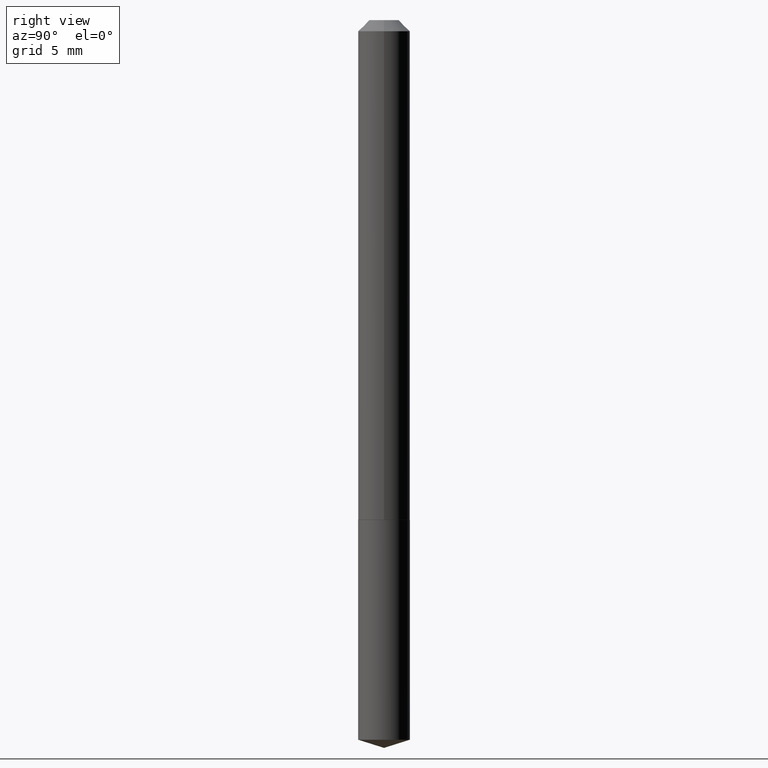
[diagram: clean part render]
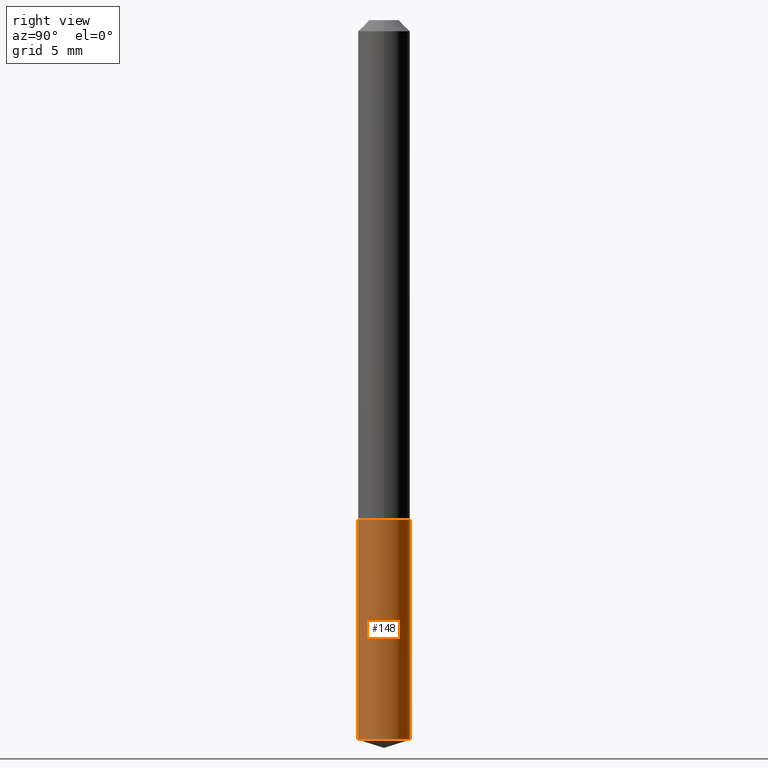
[diagram: same view with one face highlighted and labeled with its STEP entity id]
A machine part, right view. The second image highlights one B-rep face of the part: STEP entity #148.
In plain terms, the highlighted cylindrical surface (edge-blend (fillet) strip) has radius 1.8504 mm, axis along (-0, 0, 1).
Its self-contained STEP definition (entity closure, byte-faithful):
#2 = ORIENTED_EDGE ( 'NONE', *, *, #133, .T. ) ;
#14 = DIRECTION ( 'NONE',  ( -2.445479730124527692E-29, 3.491465695140185611E-15, 1.000000000000000000 ) ) ;
#26 = CIRCLE ( 'NONE', #376, 0.07284999999999999809 ) ;
#46 = CARTESIAN_POINT ( 'NONE',  ( 4.950199262242735312E-29, -7.067553278479676928E-15, -2.024230483230166300 ) ) ;
#50 = FACE_OUTER_BOUND ( 'NONE', #356, .T. ) ;
#52 = DIRECTION ( 'NONE',  ( -6.982962677686265922E-15, -1.000000000000000000, 3.749962928845934523E-15 ) ) ;
#54 = CARTESIAN_POINT ( 'NONE',  ( 5.176303830012824729E-16, 0.07284999999999293430, -2.024230483230166744 ) ) ;
#55 = VECTOR ( 'NONE', #329, 39.37007874015748143 ) ;
#77 = DIRECTION ( 'NONE',  ( -2.445479730124527692E-29, 3.491465695140185611E-15, 1.000000000000000000 ) ) ;
#78 = CARTESIAN_POINT ( 'NONE',  ( 3.437106407093210258E-29, -4.907277021744042169E-15, -1.405500000000000416 ) ) ;
#80 = EDGE_CURVE ( 'NONE', #189, #157, #390, .T. ) ;
#87 = VERTEX_POINT ( 'NONE', #197 ) ;
#92 = EDGE_CURVE ( 'NONE', #300, #157, #26, .T. ) ;
#124 = CARTESIAN_POINT ( 'NONE',  ( 5.176303830012672873E-16, 0.07284999999999508535, -1.405500000000000638 ) ) ;
#133 = EDGE_CURVE ( 'NONE', #87, #189, #358, .T. ) ;
#146 = ORIENTED_EDGE ( 'NONE', *, *, #92, .F. ) ;
#148 = ADVANCED_FACE ( 'NONE', ( #50 ), #204, .T. ) ;
#157 = VERTEX_POINT ( 'NONE', #342 ) ;
#189 = VERTEX_POINT ( 'NONE', #54 ) ;
#197 = CARTESIAN_POINT ( 'NONE',  ( -5.087088310693949799E-16, -0.07285000000000707576, -2.024230483230165856 ) ) ;
#200 = DIRECTION ( 'NONE',  ( -2.445479730124527692E-29, 3.491465695140185611E-15, 1.000000000000000000 ) ) ;
#204 = CYLINDRICAL_SURFACE ( 'NONE', #313, 0.07284999999999999809 ) ;
#215 = DIRECTION ( 'NONE',  ( -2.445479730124527972E-29, 3.491465695140185611E-15, 1.000000000000000000 ) ) ;
#222 = AXIS2_PLACEMENT_3D ( 'NONE', #46, #200, #314 ) ;
#226 = LINE ( 'NONE', #340, #55 ) ;
#228 = CARTESIAN_POINT ( 'NONE',  ( -5.087088310694100669E-16, -0.07285000000000491083, -1.405499999999999972 ) ) ;
#237 = ORIENTED_EDGE ( 'NONE', *, *, #278, .F. ) ;
#252 = DIRECTION ( 'NONE',  ( -6.982962677686265922E-15, -1.000000000000000000, 3.749962928845934523E-15 ) ) ;
#278 = EDGE_CURVE ( 'NONE', #87, #300, #226, .T. ) ;
#289 = ORIENTED_EDGE ( 'NONE', *, *, #80, .T. ) ;
#300 = VERTEX_POINT ( 'NONE', #228 ) ;
#309 = CARTESIAN_POINT ( 'NONE',  ( 3.437106407093210258E-29, -4.907277021744042169E-15, -1.405500000000000416 ) ) ;
#313 = AXIS2_PLACEMENT_3D ( 'NONE', #309, #14, #52 ) ;
#314 = DIRECTION ( 'NONE',  ( -6.982962677686265922E-15, -1.000000000000000000, 3.749962928845934523E-15 ) ) ;
#329 = DIRECTION ( 'NONE',  ( -2.445479730124527972E-29, 3.491465695140185611E-15, 1.000000000000000000 ) ) ;
#338 = VECTOR ( 'NONE', #215, 39.37007874015748143 ) ;
#340 = CARTESIAN_POINT ( 'NONE',  ( -5.087088310694100669E-16, -0.07285000000000491083, -1.405499999999999972 ) ) ;
#342 = CARTESIAN_POINT ( 'NONE',  ( 5.176303830012825715E-16, 0.07284999999999508535, -1.405500000000000638 ) ) ;
#356 = EDGE_LOOP ( 'NONE', ( #2, #289, #146, #237 ) ) ;
#358 = CIRCLE ( 'NONE', #222, 0.07284999999999999809 ) ;
#376 = AXIS2_PLACEMENT_3D ( 'NONE', #78, #77, #252 ) ;
#390 = LINE ( 'NONE', #124, #338 ) ;